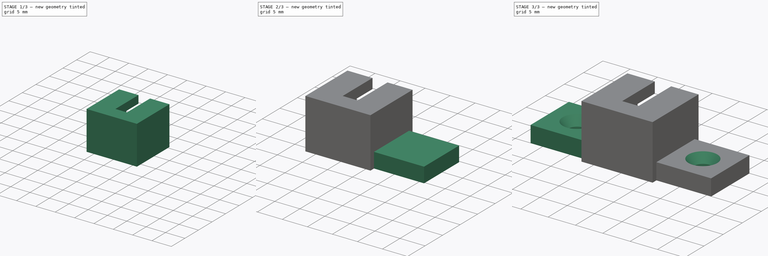
[diagram: build sequence overview — one tinted view per stage of 3, left to right]
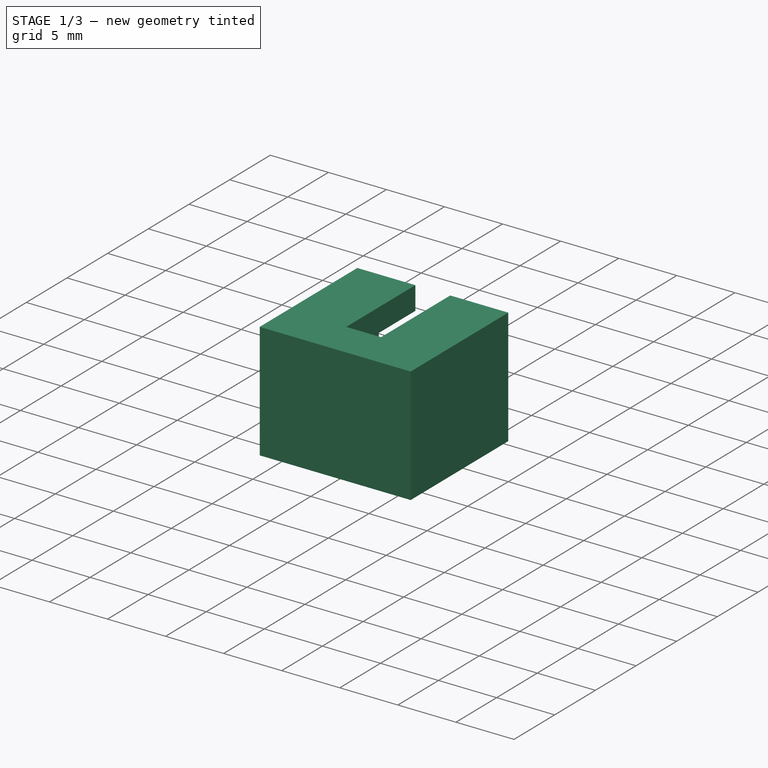
[diagram: stage 1 of 3 — iso view after this stage's code; geometry added in this stage tinted green]
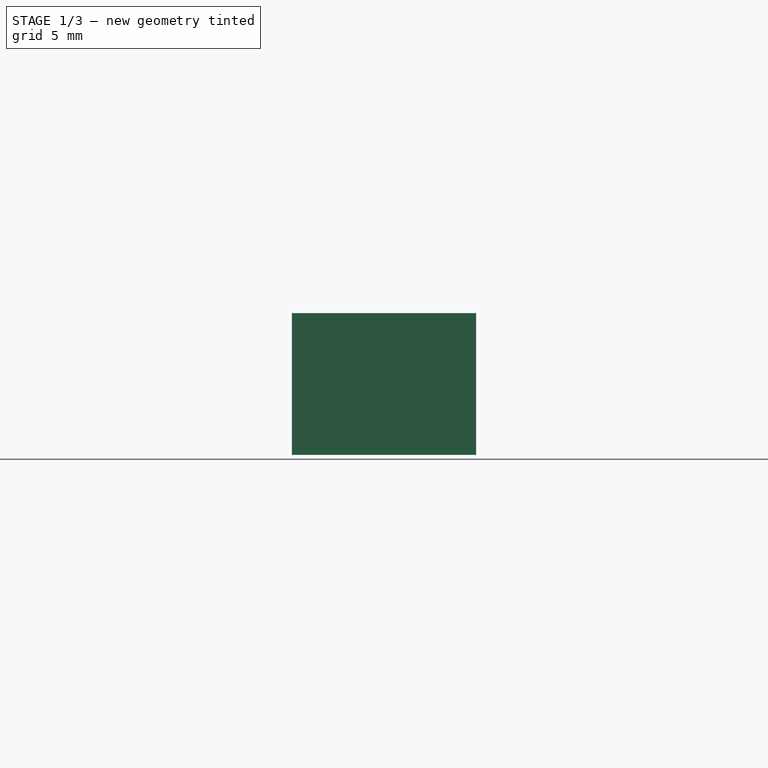
[diagram: stage 1 of 3 — front view after this stage's code; geometry added in this stage tinted green]
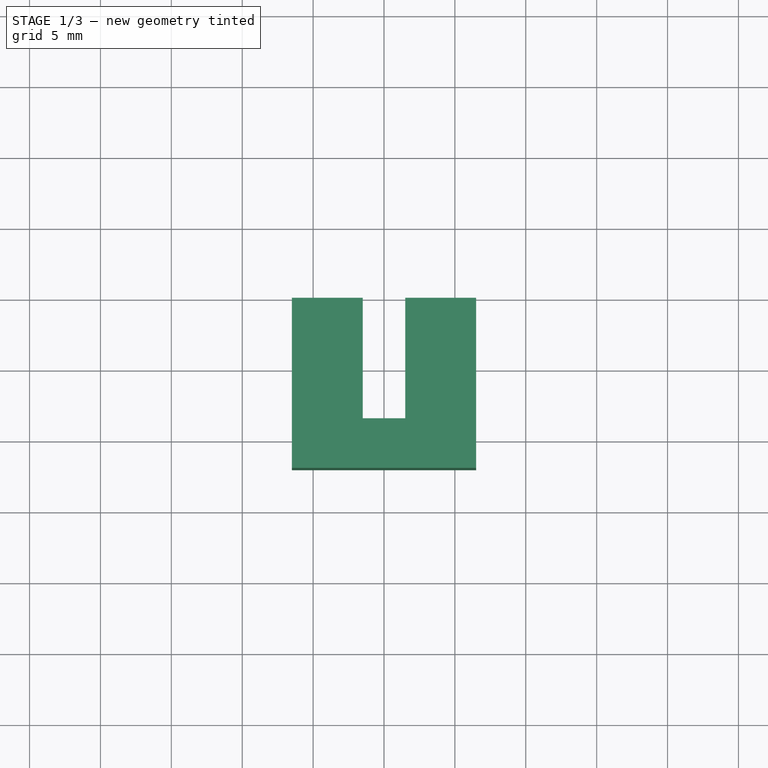
[diagram: stage 1 of 3 — top view after this stage's code; geometry added in this stage tinted green]
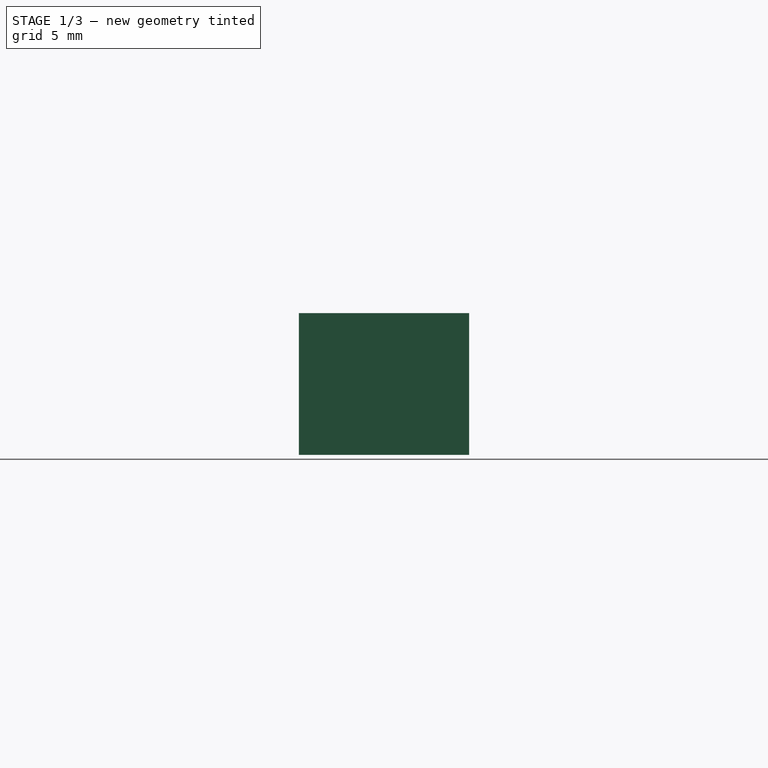
[diagram: stage 1 of 3 — right view after this stage's code; geometry added in this stage tinted green]
FCSTD DOCUMENT  (FreeCAD 0.20R29603 (Git))
Label: jackLock
License: All rights reserved
LicenseURL: http://en.wikipedia.org/wiki/All_rights_reserved
objects: Sketcher::SketchObject×4, PartDesign::Pad×2, PartDesign::Pocket×1, PartDesign::Plane×1, PartDesign::Groove×1, PartDesign::Mirrored×1, PartDesign::Body×1
note: 15 computed .brp shape members not serialized (recipe doc carries the construction recipe); baked Part::Feature solids carry a one-line shape summary decoded from their .brp

FEATURE [Sketcher::SketchObject] Sketch
  FullyConstrained = true
  MapMode = 5
  Placement = pos=(0,0,0) rot=(1,0,0;1.5708rad)
  Support = -> [XZ_Plane]
  sketch-geometry (4):
    g0: LineSegment StartX=-6.5 StartY=2 StartZ=0 EndX=6.5 EndY=2 EndZ=0
    g1: LineSegment StartX=6.5 StartY=2 StartZ=0 EndX=6.5 EndY=-8 EndZ=0
    g2: LineSegment StartX=6.5 StartY=-8 StartZ=0 EndX=-6.5 EndY=-8 EndZ=0
    g3: LineSegment StartX=-6.5 StartY=-8 StartZ=0 EndX=-6.5 EndY=2 EndZ=0
  constraints (12):
    c: Coincident(g0,g1)
    c: Coincident(g1,g2)
    c: Coincident(g2,g3)
    c: Coincident(g3,g0)
    c: Horizontal(g0)
    c: Horizontal(g2)
    c: Vertical(g1)
    c: Vertical(g3)
    c: DistanceX(g-1,g0) = 6.5
    c: DistanceX(g0,g-1) = 6.5
    c: DistanceY(g-1,g0) = 2
    c: DistanceY(g1,g-1) = 8
FEATURE [PartDesign::Pad] Pad
  Direction = (0,-1,2e-16)
  Length = 12
  Length2 = 10
  Placement = pos=(0,0,0) rot=(1,0,0;1.5708rad)
  Profile = -> Sketch
  ReferenceAxis = -> Sketch [N_Axis]
  Type = 0
FEATURE [Sketcher::SketchObject] Sketch001
  FullyConstrained = false
  MapMode = 5
  Placement = pos=(0,0,0) rot=(0,0.707107,0.707107;3.14159rad)
  Support = -> [XZ_Plane]
  sketch-geometry (8):
    g0: LineSegment StartX=-1.5 StartY=5.90637 StartZ=0 EndX=1.5 EndY=5.90637 EndZ=0
    g1: LineSegment StartX=1.5 StartY=5.90637 StartZ=0 EndX=1.5 EndY=0 EndZ=0
    g2: LineSegment StartX=-1.5 StartY=5.90637 StartZ=0 EndX=-1.5 EndY=0 EndZ=0
    g3: LineSegment StartX=-1.5 StartY=0 StartZ=0 EndX=-4.65 EndY=0 EndZ=0
    g4: LineSegment StartX=-4.65 StartY=0 StartZ=0 EndX=-4.65 EndY=-8.83584 EndZ=0
    g5: LineSegment StartX=-4.65 StartY=-8.83584 StartZ=0 EndX=4.65 EndY=-8.83584 EndZ=0
    g6: LineSegment StartX=4.65 StartY=-8.83584 StartZ=0 EndX=4.65 EndY=0 EndZ=0
    g7: LineSegment StartX=4.65 StartY=0 StartZ=0 EndX=1.5 EndY=0 EndZ=0
  constraints (22):
    c: Horizontal(g0)
    c: Coincident(g1,g0)
    c: Vertical(g1)
    c: Coincident(g2,g0)
    c: Vertical(g2)
    c: DistanceY(g2,g1) = 0
    c: PointOnObject(g1,g-1)
    c: Coincident(g3,g2)
    c: PointOnObject(g3,g-1)
    c: Coincident(g4,g3)
    c: Vertical(g4)
    c: Coincident(g5,g4)
    c: Horizontal(g5)
    c: Coincident(g6,g5)
    c: PointOnObject(g6,g-1)
    c: Vertical(g6)
    c: Coincident(g7,g6)
    c: Coincident(g7,g1)
    c: DistanceX(g3,g-1) = 4.65
    c: DistanceX(g-1,g6) = 4.65
    c: DistanceX(g-1,g0) = 1.5
    c: DistanceX(g0,g-1) = 1.5
FEATURE [PartDesign::Pocket] Pocket
  BaseFeature = -> Pad
  Direction = (0,-1,-2e-16)
  Length = 8.5
  Length2 = 5
  Placement = pos=(0,0,0) rot=(1,0,0;1.5708rad)
  Profile = -> Sketch001
  ReferenceAxis = -> Sketch001 [N_Axis]
  Type = 0
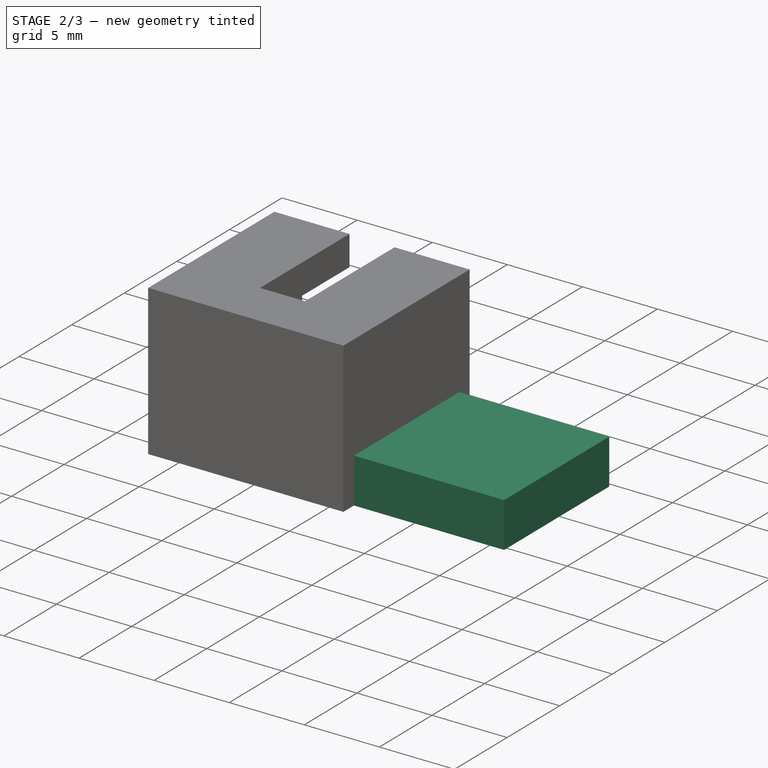
[diagram: stage 2 of 3 — iso view after this stage's code; geometry added in this stage tinted green]
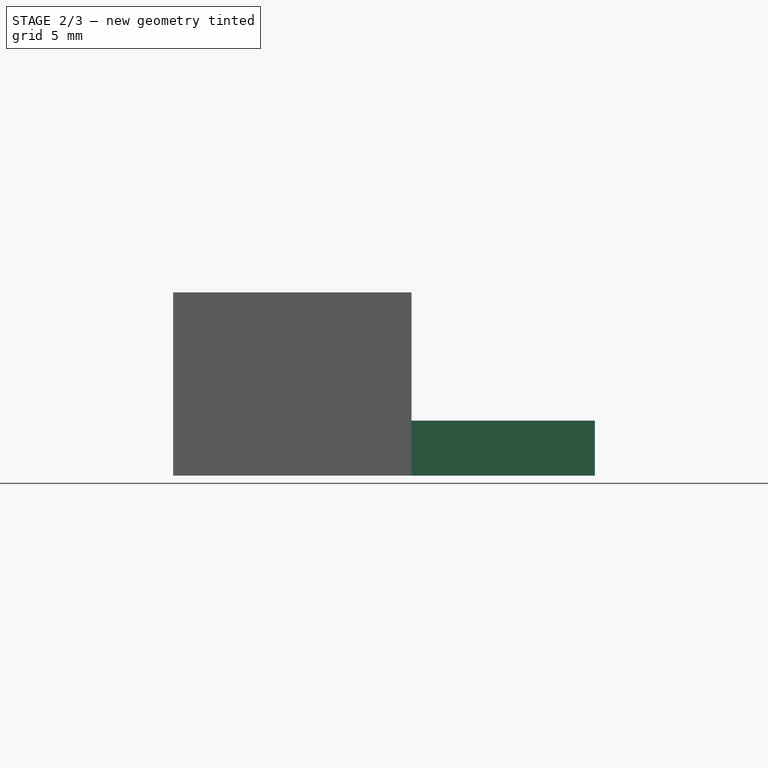
[diagram: stage 2 of 3 — front view after this stage's code; geometry added in this stage tinted green]
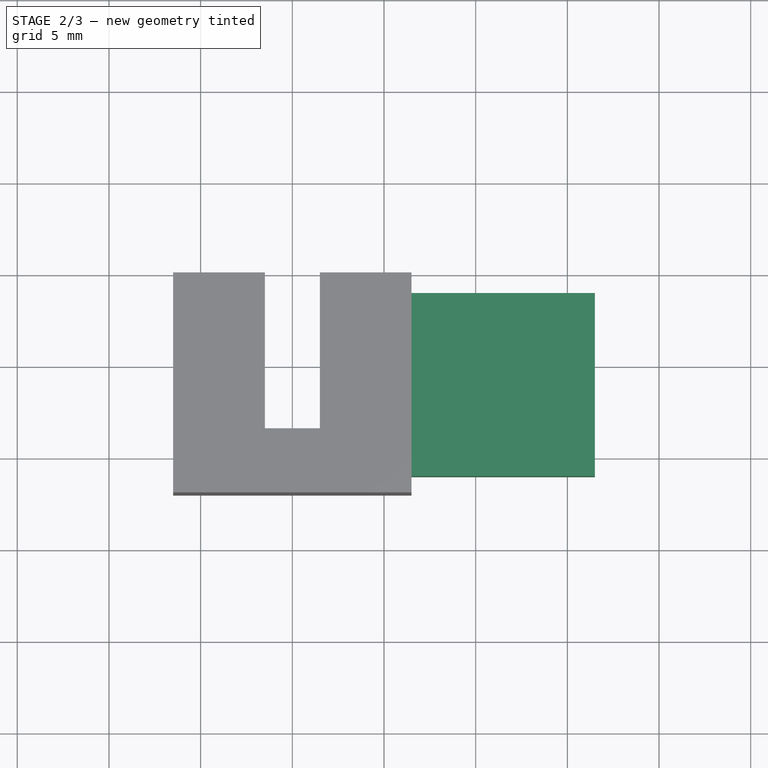
[diagram: stage 2 of 3 — top view after this stage's code; geometry added in this stage tinted green]
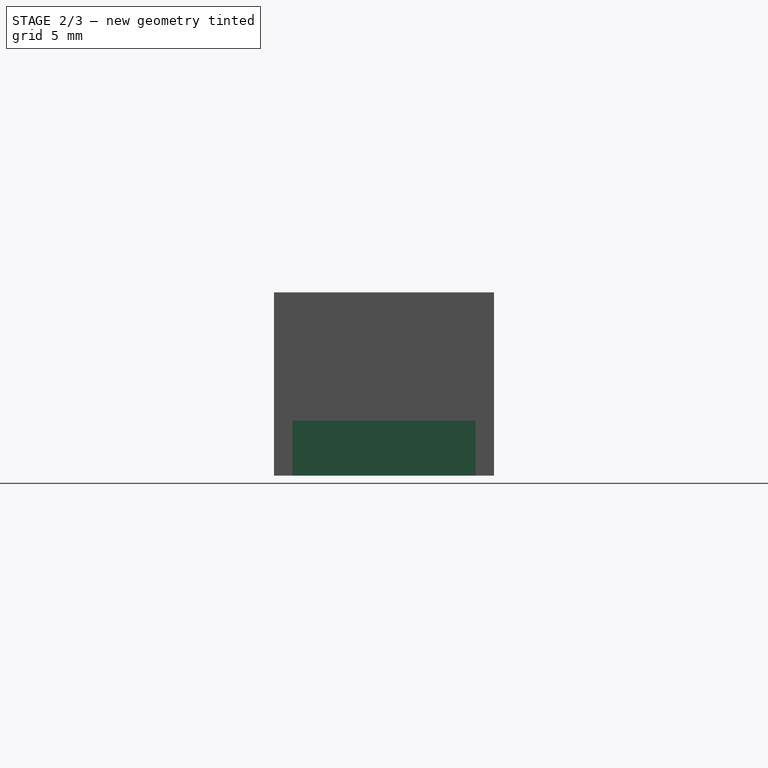
[diagram: stage 2 of 3 — right view after this stage's code; geometry added in this stage tinted green]
FEATURE [Sketcher::SketchObject] Sketch002
  FullyConstrained = true
  MapMode = 5
  Placement = pos=(6.5,0,0) rot=(0.707107,0,0.707107;3.14159rad)
  Support = -> [Pocket]
  sketch-geometry (4):
    g0: LineSegment StartX=-5 StartY=11 StartZ=0 EndX=-8 EndY=11 EndZ=0
    g1: LineSegment StartX=-8 StartY=11 StartZ=0 EndX=-8 EndY=1 EndZ=0
    g2: LineSegment StartX=-8 StartY=1 StartZ=0 EndX=-5 EndY=1 EndZ=0
    g3: LineSegment StartX=-5 StartY=1 StartZ=0 EndX=-5 EndY=11 EndZ=0
  constraints (12):
    c: Coincident(g0,g1)
    c: Coincident(g1,g2)
    c: Coincident(g2,g3)
    c: Coincident(g3,g0)
    c: Horizontal(g0)
    c: Horizontal(g2)
    c: Vertical(g1)
    c: Vertical(g3)
    c: DistanceX(g2,g2) = 3
    c: DistanceX(g1,g-1) = 8
    c: DistanceY(g3,g3) = 10
    c: DistanceY(g-1,g2) = 1
FEATURE [PartDesign::Pad] Pad001
  BaseFeature = -> Pocket
  Direction = (1,0,-2e-16)
  Length = 10
  Length2 = 10
  Placement = pos=(0,0,0) rot=(1,0,0;1.5708rad)
  Profile = -> Sketch002
  ReferenceAxis = -> Sketch002 [N_Axis]
  Type = 0
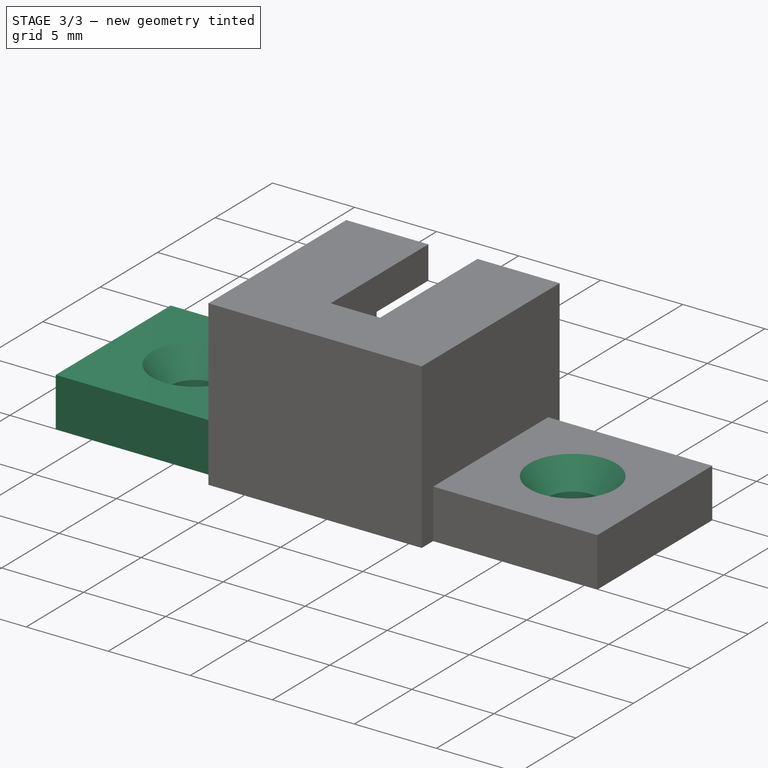
[diagram: stage 3 of 3 — iso view after this stage's code; geometry added in this stage tinted green]
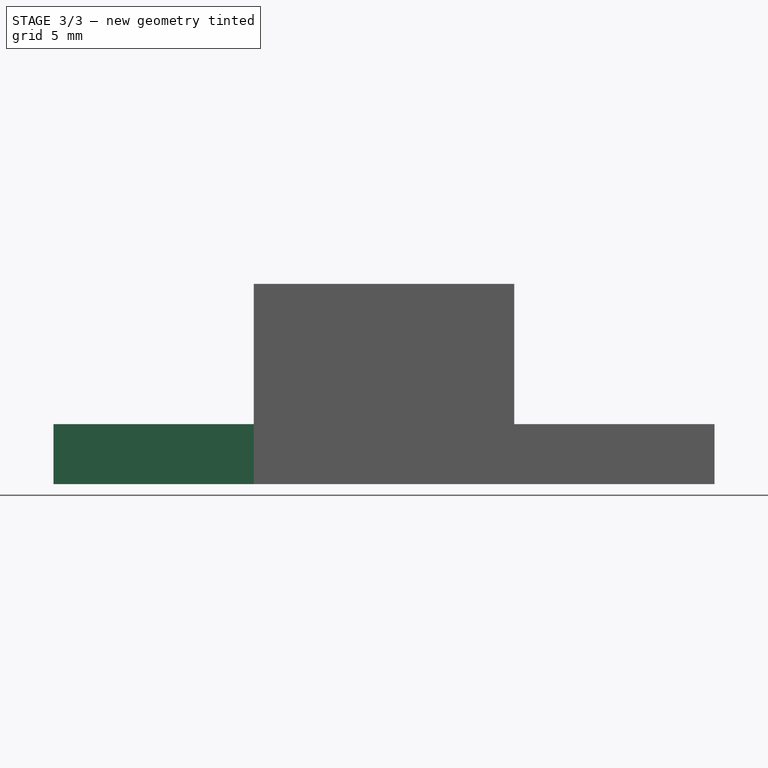
[diagram: stage 3 of 3 — front view after this stage's code; geometry added in this stage tinted green]
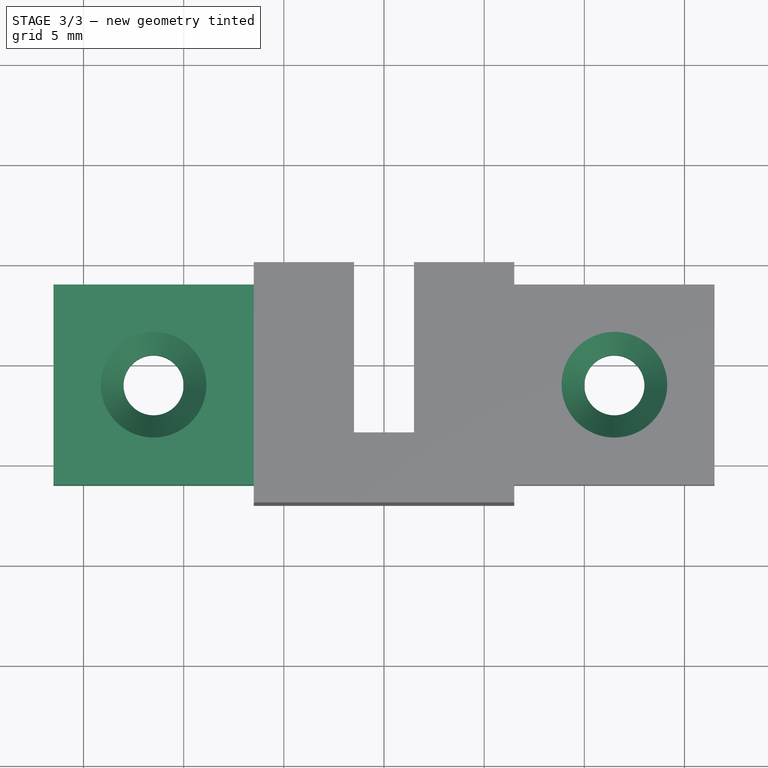
[diagram: stage 3 of 3 — top view after this stage's code; geometry added in this stage tinted green]
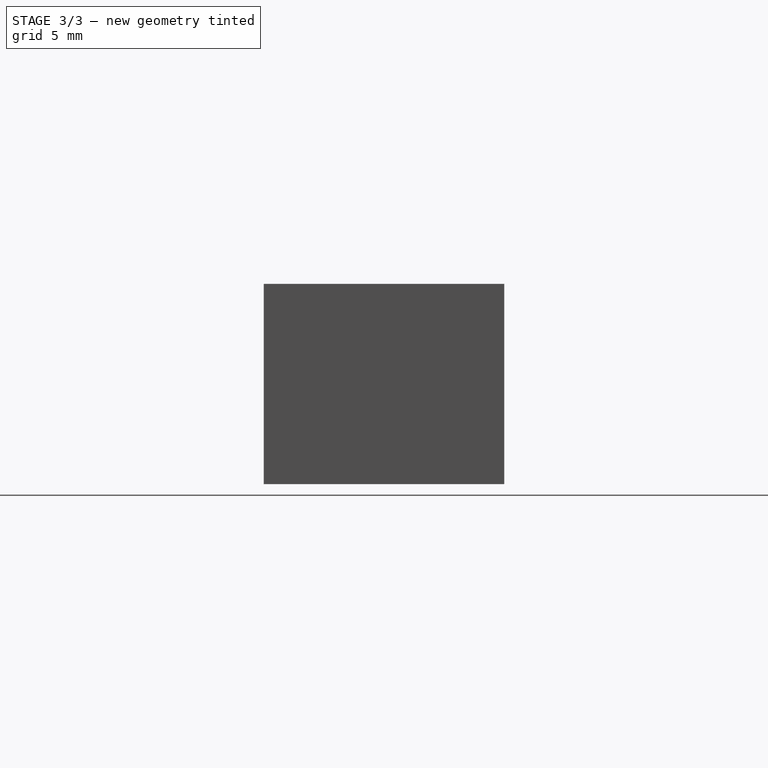
[diagram: stage 3 of 3 — right view after this stage's code; geometry added in this stage tinted green]
FEATURE [PartDesign::Plane] DatumPlane
  AttachmentOffset = pos=(0,0,11.5) rot=(0,0,1;0rad)
  Length = 60
  MapMode = 5
  Placement = pos=(11.5,-2.6e-15,2.6e-15) rot=(0.57735,0.57735,0.57735;2.0944rad)
  ResizeMode = 0
  Support = -> [YZ_Plane]
  Width = 60
FEATURE [Sketcher::SketchObject] Sketch003
  FullyConstrained = false
  MapMode = 5
  Placement = pos=(11.5,-2.6e-15,2.6e-15) rot=(0.57735,0.57735,0.57735;2.0944rad)
  Support = -> [DatumPlane]
  sketch-geometry (6):
    g0: LineSegment StartX=-6 StartY=-3.81073 StartZ=0 EndX=-6 EndY=-9.23517 EndZ=0
    g1: LineSegment StartX=-6 StartY=-5 StartZ=0 EndX=-8.63667 EndY=-5 EndZ=0
    g2: LineSegment StartX=-8.63667 StartY=-5 StartZ=0 EndX=-7.5 EndY=-6.55 EndZ=0
    g3: LineSegment StartX=-7.5 StartY=-6.55 StartZ=0 EndX=-7.5 EndY=-10.5591 EndZ=0
    g4: LineSegment StartX=-7.5 StartY=-10.5591 StartZ=0 EndX=-6 EndY=-10.5591 EndZ=0
    g5: LineSegment StartX=-6 StartY=-10.5591 StartZ=0 EndX=-6 EndY=-5 EndZ=0
  constraints (16):
    c: Vertical(g0)
    c: DistanceX(g0,g-1) = 6
    c: PointOnObject(g1,g0)
    c: Horizontal(g1)
    c: Coincident(g2,g1)
    c: Coincident(g3,g2)
    c: Vertical(g3)
    c: Coincident(g4,g3)
    c: Horizontal(g4)
    c: Coincident(g5,g4)
    c: Coincident(g5,g1)
    c: Vertical(g5)
    c: DistanceX(g4,g4) = 1.5
    c: DistanceY(g2,g1) = 1.55
    c: DistanceY(g1,g-1) = 5
    c: Angle(g-2,g2) = 0.632748
FEATURE [PartDesign::Groove] Groove
  Angle = 360
  Axis = (6e-16,-6e-16,-5.42445)
  Base = (11.5,-6,-3.81072)
  BaseFeature = -> Pad001
  Placement = pos=(0,0,0) rot=(1,0,0;1.5708rad)
  Profile = -> Sketch003
  ReferenceAxis = -> Sketch003 [Axis0]
FEATURE [PartDesign::Mirrored] Mirrored
  BaseFeature = -> Groove
  MirrorPlane = -> YZ_Plane
  Originals = -> [Pad001,Groove]
  Placement = pos=(0,0,0) rot=(1,0,0;1.5708rad)
FEATURE [PartDesign::Body] Body
  Group = -> [Sketch,Pad,Sketch001,Pocket,Sketch002,Pad001,DatumPlane,Sketch003,Groove,Mirrored]
  Origin = -> Origin
  Tip = -> Mirrored
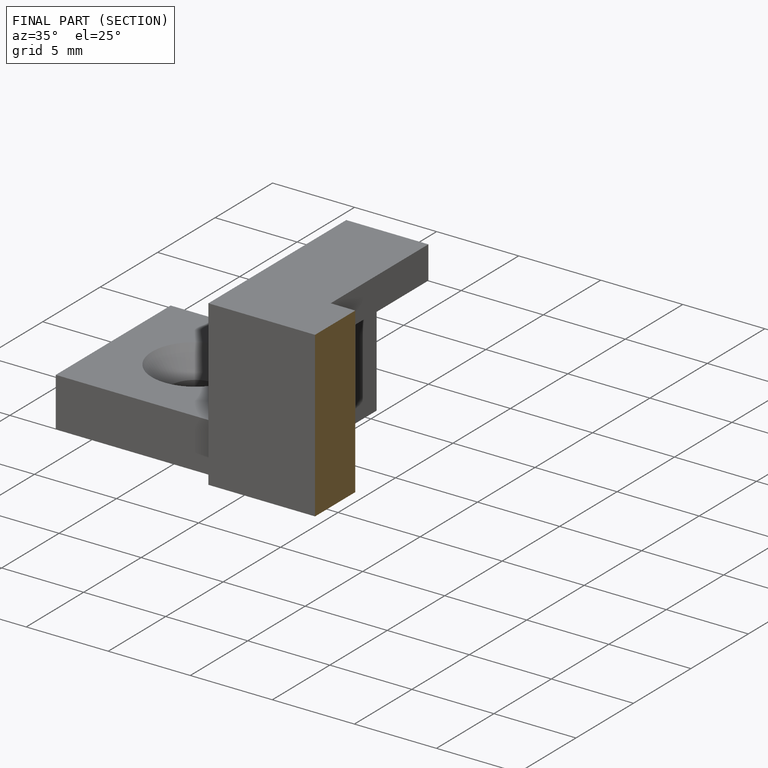
[diagram: finished part — half-section view (interior)]
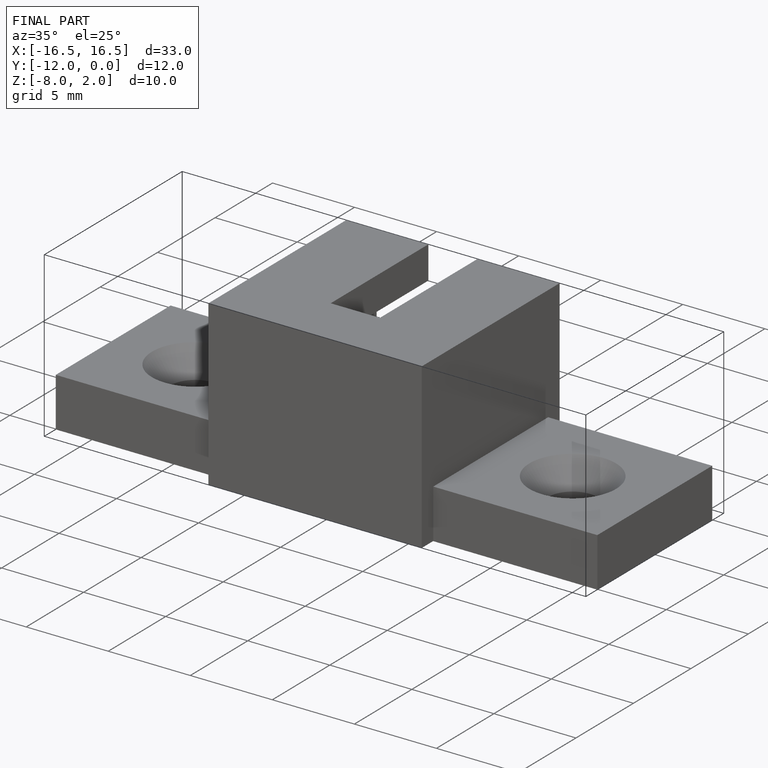
[diagram: finished part — iso view with bounding-box wireframe]
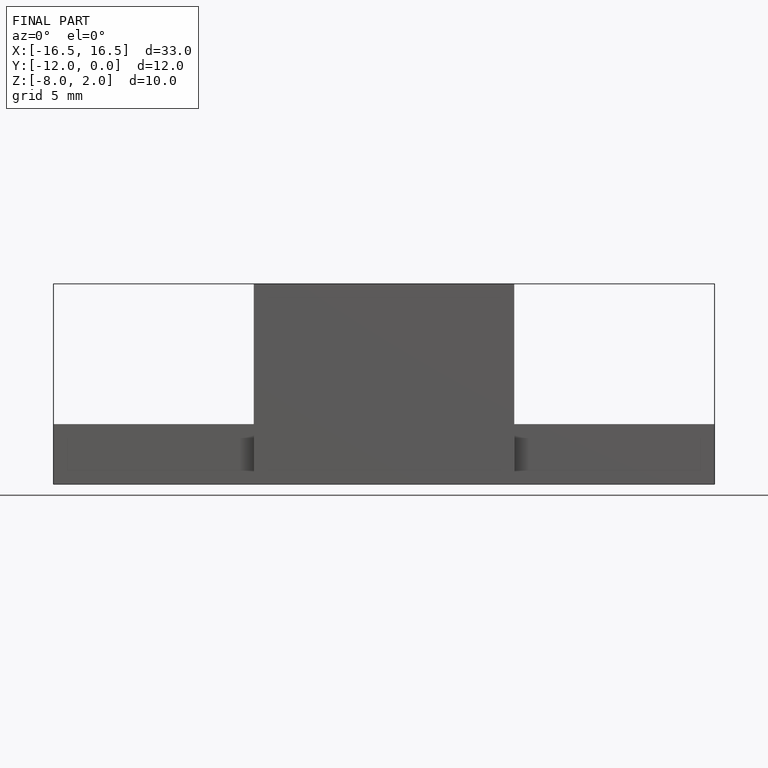
[diagram: finished part — front view with bounding-box wireframe]
